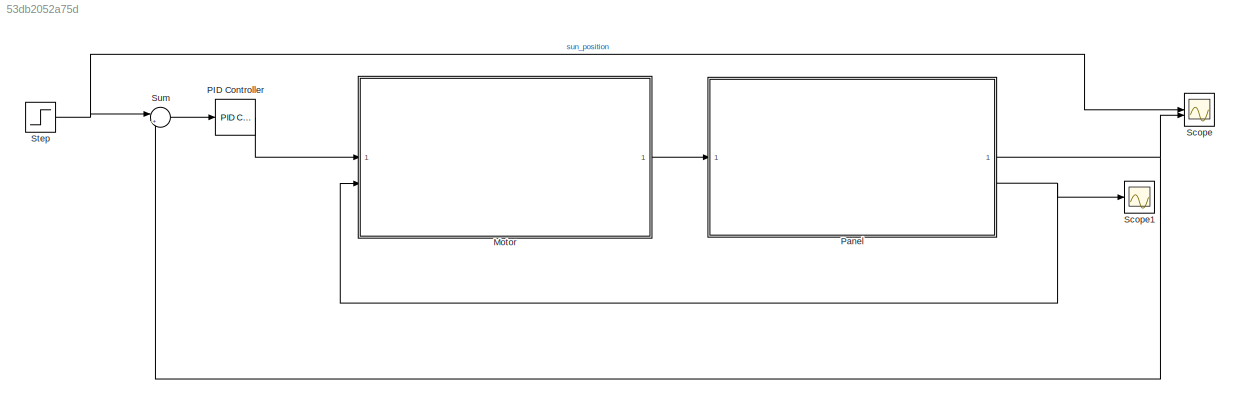
MODEL slx_53db2052a75d
KIND model
CONFIG AbsTol = auto
CONFIG EnableMultiTasking = off
CONFIG FixedStep = auto
CONFIG MaxStep = auto
CONFIG MinStep = auto
CONFIG RelTol = 1e-3
CONFIG SampleTimeConstraint = Unconstrained
CONFIG SolverName = VariableStepAuto
CONFIG StartTime = 0.0
CONFIG StopTime = 10.0
WORKSPACE source: mxarray member
WORKSPACE J = 1.1
WORKSPACE Kd = 1.4
WORKSPACE Kf = 1.8
WORKSPACE Kg = 4.2
WORKSPACE Kt = 4.2
WORKSPACE L = 1
WORKSPACE R = 1.6
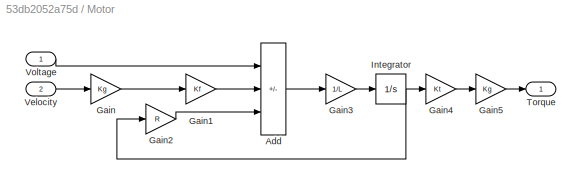
BLOCK [SubSystem] Motor
BLOCK [Sum] Motor/Add
  IconShape = rectangular
  Inputs = +--
BLOCK [Gain] Motor/Gain
  Gain = Kg
BLOCK [Gain] Motor/Gain1
  Gain = Kf
BLOCK [Gain] Motor/Gain2
  Gain = R
BLOCK [Gain] Motor/Gain3
  Gain = 1/L
BLOCK [Gain] Motor/Gain4
  Gain = Kt
BLOCK [Gain] Motor/Gain5
  Gain = Kg
BLOCK [Integrator] Motor/Integrator
BLOCK [Outport] Motor/Torque
BLOCK [Inport] Motor/Velocity
  Port = 2
BLOCK [Inport] Motor/Voltage
BLOCK [Reference] PID Controller  REF=slpidlib/PID Controller
  LibrarySourceBlock = simulink/Continuous/PID Controller
  SourceBlock = slpidlib/PID Controller
  SourceType = PID 1dof
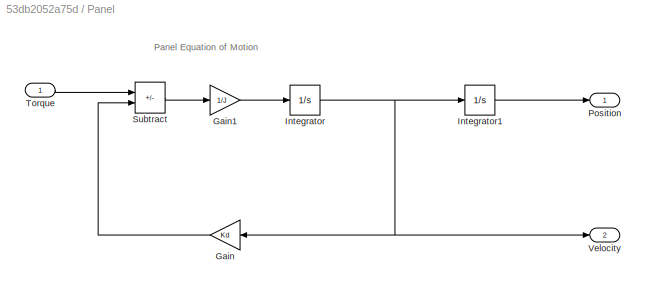
BLOCK [SubSystem] Panel
BLOCK [Gain] Panel/Gain
  Gain = Kd
  NameLocation = top
BLOCK [Gain] Panel/Gain1
  Gain = 1/J
BLOCK [Integrator] Panel/Integrator
BLOCK [Integrator] Panel/Integrator1
BLOCK [Outport] Panel/Position
BLOCK [Sum] Panel/Subtract
  IconShape = rectangular
  Inputs = +-
BLOCK [Inport] Panel/Torque
BLOCK [Outport] Panel/Velocity
  Port = 2
BLOCK [Scope] Scope
  Floating = off
  NumInputPorts = 2
  ScopeSpecificationString = Simulink.scopes.TimeScopeBlockCfg('CurrentConfiguration', extmgr.ConfigurationSet(extmgr.Configuration('Core','General UI',true),extmgr.Configuration('Core','Source UI',true),extmgr.Configuration('Sources','WiredSimulink',true),extmgr.Configuration('Visuals','Time Domain',true,'SerializedDisplays',{struct('MinYLimReal','-8999820168278768091136.00000','MaxYLimReal','8766495443301028593664.00000','Y...<+1624ch>
BLOCK [Scope] Scope1
  Floating = off
  NumInputPorts = 1
  ScopeSpecificationString = Simulink.scopes.TimeScopeBlockCfg('CurrentConfiguration', extmgr.ConfigurationSet(extmgr.Configuration('Core','General UI',true),extmgr.Configuration('Core','Source UI',true),extmgr.Configuration('Sources','WiredSimulink',true,'DataLoggingVariableName','ScopeData1'),extmgr.Configuration('Visuals','Time Domain',true,'SerializedDisplays',{struct('MinYLimReal','-116858812572761348636672.00000','MaxYL...<+1666ch>
BLOCK [Step] Step
  SampleTime = 0
BLOCK [Sum] Sum
  Inputs = |+-
ANNOTATION Panel: Panel Equation of Motion
LINE Motor/Add:1 -> Motor/Gain3:1
LINE Motor/Gain1:1 -> Motor/Add:2
LINE Motor/Gain2:1 -> Motor/Add:3
LINE Motor/Gain3:1 -> Motor/Integrator:1
LINE Motor/Gain4:1 -> Motor/Gain5:1
LINE Motor/Gain5:1 -> Motor/Torque:1
LINE Motor/Gain:1 -> Motor/Gain1:1
NET Motor/Integrator:1 -> Motor/Gain2:1, Motor/Gain4:1
LINE Motor/Velocity:1 -> Motor/Gain:1
LINE Motor/Voltage:1 -> Motor/Add:1
LINE Motor:1 -> Panel:1
LINE PID Controller:1 -> Motor:1
LINE Panel/Gain1:1 -> Panel/Integrator:1
LINE Panel/Gain:1 -> Panel/Subtract:2
LINE Panel/Integrator1:1 -> Panel/Position:1
NET Panel/Integrator:1 -> Panel/Gain:1, Panel/Integrator1:1, Panel/Velocity:1
LINE Panel/Subtract:1 -> Panel/Gain1:1
LINE Panel/Torque:1 -> Panel/Subtract:1
NET Panel:1 -> Scope:2, Sum:2
NET Panel:2 -> Motor:2, Scope1:1
NET Step:1 -> Scope:1, Sum:1
LINE Sum:1 -> PID Controller:1
note: NET lines group one-source signal fan-out (src -> all destinations, sorted); 1:1 wires keep LINE
